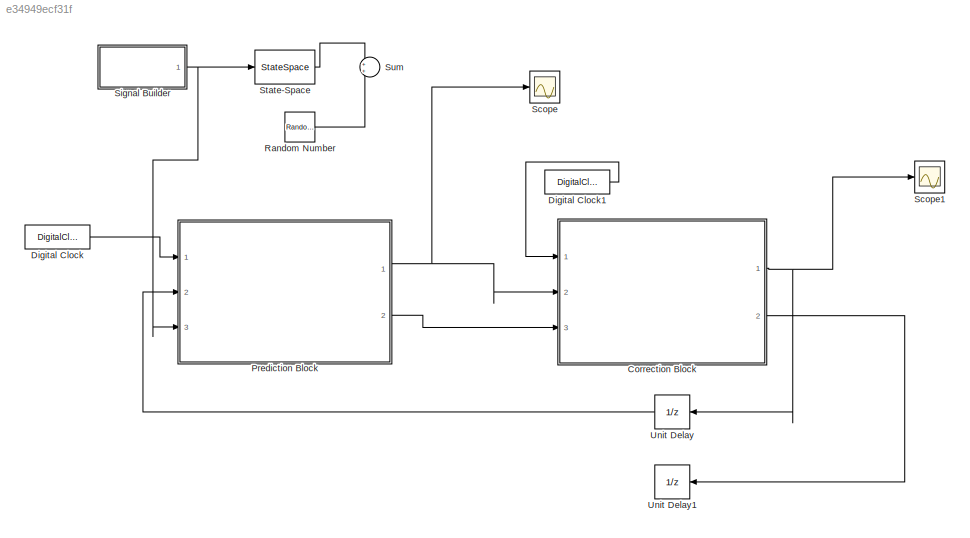
MODEL slx_e34949ecf31f
KIND model
CONFIG AbsTol = auto
CONFIG EnableMultiTasking = off
CONFIG FixedStep = auto
CONFIG MaxStep = auto
CONFIG MinStep = auto
CONFIG RelTol = 1e-3
CONFIG SampleTimeConstraint = Unconstrained
CONFIG Solver = VariableStepAuto
CONFIG SolverName = VariableStepAuto
CONFIG StartTime = 0.0
CONFIG StopTime = 10.0
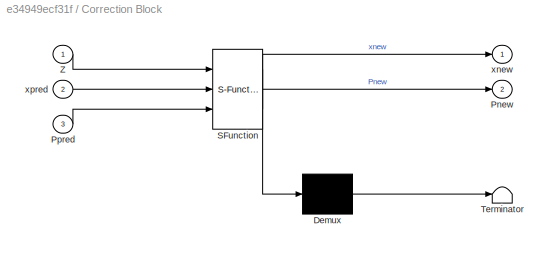
BLOCK [SubSystem] Correction Block
  ErrorFcn = Stateflow.Translate.translate
  PermitHierarchicalResolution = ExplicitOnly
  Ports = [3, 2]
  RequestExecContextInheritance = off
  SFBlockType = MATLAB Function
  TreatAsAtomicUnit = on
  Variant = off
BLOCK [Demux] Correction Block/ Demux 
  Outputs = 1
  Ports = [1, 1]
BLOCK [S-Function] Correction Block/ SFunction 
  EnableBusSupport = on
  FunctionName = sf_sfun
  PortCounts = [3 3]
  Ports = [3, 3]
  SFcnIsStateOwnerBlock = off
  SFunctionDeploymentMode = off
  Tag = Stateflow S-Function hw32f 1
BLOCK [Terminator] Correction Block/ Terminator 
BLOCK [Outport] Correction Block/Pnew
  IconDisplay = Port number
  Port = 2
BLOCK [Inport] Correction Block/Ppred
  IconDisplay = Port number
  Port = 3
BLOCK [Inport] Correction Block/Z
  IconDisplay = Port number
BLOCK [Outport] Correction Block/xnew
  IconDisplay = Port number
BLOCK [Inport] Correction Block/xpred
  IconDisplay = Port number
  Port = 2
BLOCK [DigitalClock] Digital Clock
  SampleTime = 0.01
BLOCK [DigitalClock] Digital Clock1
  SampleTime = 0.01
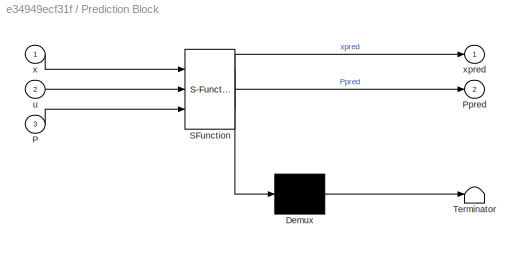
BLOCK [SubSystem] Prediction Block
  ErrorFcn = Stateflow.Translate.translate
  PermitHierarchicalResolution = ExplicitOnly
  Ports = [3, 2]
  RequestExecContextInheritance = off
  SFBlockType = MATLAB Function
  TreatAsAtomicUnit = on
  Variant = off
BLOCK [Demux] Prediction Block/ Demux 
  Outputs = 1
  Ports = [1, 1]
BLOCK [S-Function] Prediction Block/ SFunction 
  EnableBusSupport = on
  FunctionName = sf_sfun
  PortCounts = [3 3]
  Ports = [3, 3]
  SFcnIsStateOwnerBlock = off
  SFunctionDeploymentMode = off
  Tag = Stateflow S-Function hw32f 2
BLOCK [Terminator] Prediction Block/ Terminator 
BLOCK [Inport] Prediction Block/P
  IconDisplay = Port number
  Port = 3
BLOCK [Outport] Prediction Block/Ppred
  IconDisplay = Port number
  Port = 2
BLOCK [Inport] Prediction Block/u
  IconDisplay = Port number
  Port = 2
BLOCK [Inport] Prediction Block/x
  IconDisplay = Port number
BLOCK [Outport] Prediction Block/xpred
  IconDisplay = Port number
BLOCK [RandomNumber] Random Number
  SampleTime = 0.01
  Variance = [0.0001, 0.0000001, 0.00002, 0.00002]
BLOCK [Scope] Scope
  NumInputPorts = 1
  Ports = [1]
  ScopeSpecificationString = Simulink.scopes.TimeScopeBlockCfg('CurrentConfiguration', extmgr.ConfigurationSet(extmgr.Configuration('Core','General UI',true),extmgr.Configuration('Core','Source UI',true),extmgr.Configuration('Sources','WiredSimulink',true),extmgr.Configuration('Visuals','Time Domain',true,'SerializedDisplays',{struct('MinYLimReal','-13.56294','MaxYLimReal','13.43826','YLabelReal','','MinYLimMag','0.00000','Ma...<+1370ch>
BLOCK [Scope] Scope1
  NumInputPorts = 1
  Ports = [1]
  ScopeSpecificationString = Simulink.scopes.TimeScopeBlockCfg('CurrentConfiguration', extmgr.ConfigurationSet(extmgr.Configuration('Core','General UI',true),extmgr.Configuration('Core','Source UI',true),extmgr.Configuration('Sources','WiredSimulink',true,'DataLoggingVariableName','ScopeData1'),extmgr.Configuration('Visuals','Time Domain',true,'SerializedDisplays',{struct('MinYLimReal','-1.13963','MaxYLimReal','1.08722','YLab...<+1384ch>
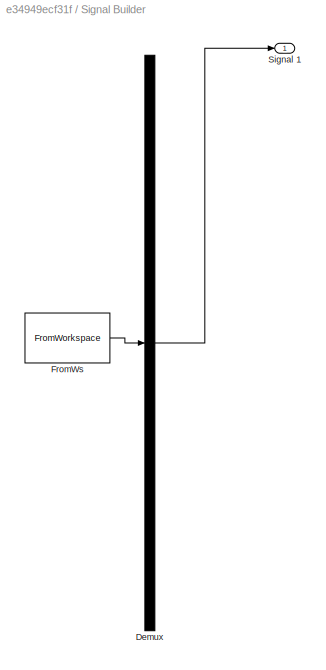
BLOCK [SubSystem] Signal Builder
  ClipboardFcn = sigbuilder_block('clipboard');
  CloseFcn = sigbuilder_block('close');
  ContinueFcn = sigbuilder_block('continue');
  CopyFcn = sigbuilder_block('copy');
  DeleteFcn = sigbuilder_block('delete');
  LoadFcn = sigbuilder_block('load');
  MaskHideContents = on
  ModelCloseFcn = sigbuilder_block('modelClose');
  NameChangeFcn = sigbuilder_block('namechange');
  OpenFcn = sigbuilder_block('open',[300 184.875 550.5 400.125 ]);
  PauseFcn = sigbuilder_block('pause');
  Ports = [0, 1]
  PreSaveFcn = sigbuilder_block('preSave');
  RequestExecContextInheritance = off
  StartFcn = sigbuilder_block('start');
  StopFcn = sigbuilder_block('stop');
  Tag = STV Subsys
  Variant = off
BLOCK [Demux] Signal Builder/Demux
  Outputs = 1
  Ports = [1, 1]
  Tag = STV Demux
BLOCK [FromWorkspace] Signal Builder/FromWs
  SampleTime = 0
  Tag = STV FromWs
  VariableName = tuvar
  ZeroCross = on
BLOCK [Outport] Signal Builder/Signal 1
  IconDisplay = Port number
  Tag = STV Outport
BLOCK [StateSpace] State-Space
  A = [0 1.0000 0 0;\n0 -0.9965 0 -0.3000;\n-0.3197 -0.5176 -0.0100 -0.7000;\n0 0 -0.0005 -0.9924];
  B = [ 0;\n-0.0013;\n0.0001;\n-0.0201];
  C = [0 0 0.9963 0.0862;\n0 0 -0.0001 0.0017;\n1.0000 0 0 0;\n0 1.0000 0 0];
  D = [0;0;0;0];
  Ports = [1, 1]
  X0 = 0
BLOCK [Sum] Sum
  IconShape = round
  InputSameDT = off
  Inputs = 2
  OutDataTypeStr = Inherit: Inherit via internal rule
  Ports = [2, 1]
  SaturateOnIntegerOverflow = off
BLOCK [UnitDelay] Unit Delay
  InputProcessing = Elements as channels (sample based)
  SampleTime = -1
BLOCK [UnitDelay] Unit Delay1
  InputProcessing = Elements as channels (sample based)
  SampleTime = -1
NET Correction Block:1 -> Scope1:1, Unit Delay:1
LINE Correction Block:2 -> Unit Delay1:1
LINE Digital Clock1:1 -> Correction Block:1
LINE Digital Clock:1 -> Prediction Block:1
NET Prediction Block:1 -> Correction Block:2, Scope:1
LINE Prediction Block:2 -> Correction Block:3
LINE Random Number:1 -> Sum:2
NET Signal Builder:1 -> Prediction Block:3, State-Space:1
LINE State-Space:1 -> Sum:1
LINE Unit Delay:1 -> Prediction Block:2
note: NET lines group one-source signal fan-out (src -> all destinations, sorted); 1:1 wires keep LINE
CHART Correction Block states=1 transitions=1
  STATE_LABEL 'eML_blk_kernel()'
  STATE_LABEL "SCRIPT:\nfunction [xnew, Pnew] = corrector(Z,xpred,Ppred)\n%xpred= A*x+B*U;\n%Ppred=A*P*A'+Q;\nR=diag([0.0001, 0.0000001, 0.00002, 0.00002]);\nc = [0 0 0.9963 0.0862;\n0 0 -0.0001 0.0017;\n1.0000 0 0 0;\n0 1.0000 0 0];\nH=c;\nK=Ppred*transpose(H)*inv(H*Ppred*(H)'+R);\nPnew=((eye(4)-K*H)*Ppred*transpose(eye(4)-K*H))+K*R*transpose(K);\nxnew=xpred+K*(Z-H*xpred);\n\nend\n\n\n\n"
CHART Prediction Block states=1 transitions=1
  STATE_LABEL 'eML_blk_kernel()'
  STATE_LABEL "SCRIPT:\nfunction [xpred, Ppred] = predict(x, u, P)\n%xpred= A*x+B*U;\n%Ppred=A*P*A'+Q;\nb = [ 0;-0.0013;0.0001;-0.0201];\na =[0 1.0000 0 0;0 -0.9965 0 -0.3000;-0.3197 -0.5176 -0.0100 -0.7000;0 0 -0.0005 -0.9924];\nQ = eye(4)*1;\nP=1000*eye(4);\nAd=expm(a*0.01);\nBd=inv(a)*(Ad-eye(4))*b;\nF=[-a Q;zeros(4,4) a'];\nG=expm(F*0.01);\nGLr=G(5:8,5:8);\nGur=G(1:4,5:8);\nQd=GLr'*Gur;\nxpred=Ad*x+Bd*u;\nPpred=Ad*P*Ad'+Qd;...<+10ch>"
